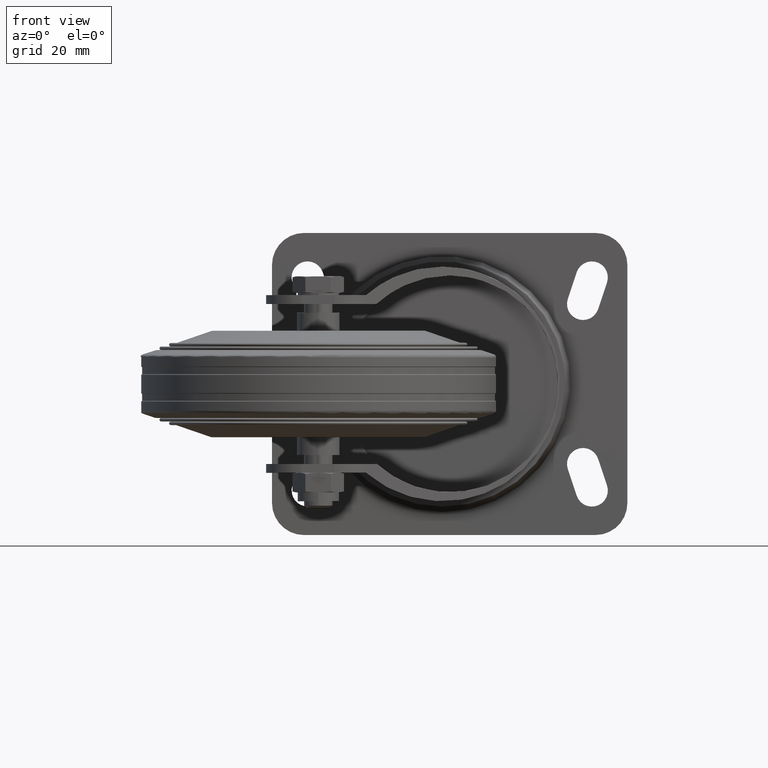
[diagram: clean part render]
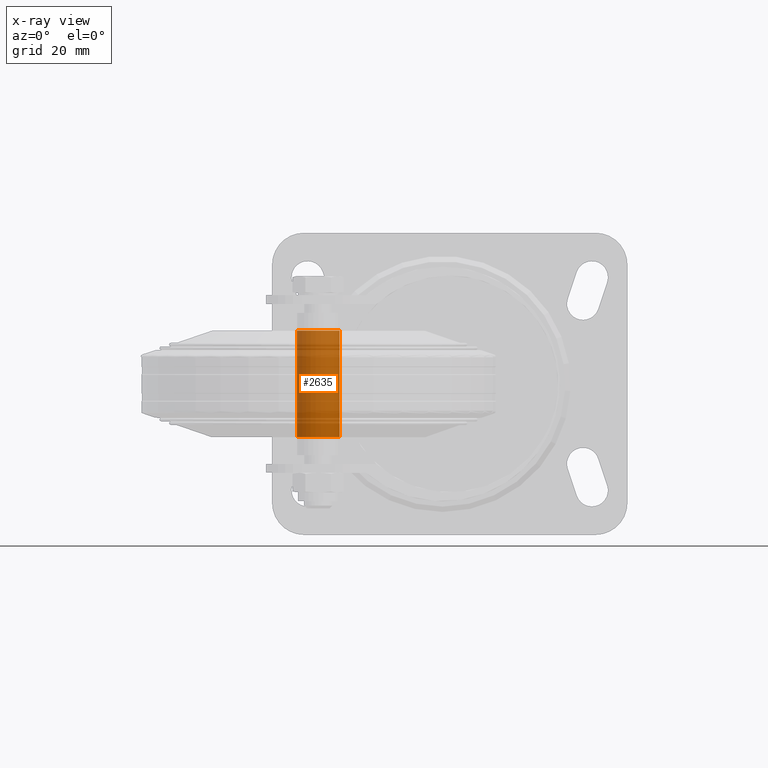
[diagram: x-ray — body ghosted, one internal face saturated and labeled with its STEP entity id]
A machine part, front view, then the same camera in x-ray: the body is ghosted and one INTERNAL B-rep face — a face not visible from any outside direction — is saturated and labeled: STEP entity #2635.
In plain terms, the highlighted cylindrical surface (bore or boss wall) has radius 6 mm, axis along (0, 0, -1).
Its self-contained STEP definition (entity closure, byte-faithful):
#344=LINE('',#4839,#471);
#471=VECTOR('',#3948,6.);
#508=CYLINDRICAL_SURFACE('',#3102,6.);
#676=FACE_OUTER_BOUND('',#882,.T.);
#882=EDGE_LOOP('',(#2427,#2428,#2429,#2430));
#1057=CIRCLE('',#3089,6.);
#1064=CIRCLE('',#3101,6.);
#1333=VERTEX_POINT('',#4817);
#1338=VERTEX_POINT('',#4836);
#1692=EDGE_CURVE('',#1333,#1333,#1057,.T.);
#1701=EDGE_CURVE('',#1338,#1338,#1064,.T.);
#1702=EDGE_CURVE('',#1338,#1333,#344,.T.);
#2427=ORIENTED_EDGE('',*,*,#1701,.F.);
#2428=ORIENTED_EDGE('',*,*,#1702,.T.);
#2429=ORIENTED_EDGE('',*,*,#1692,.T.);
#2430=ORIENTED_EDGE('',*,*,#1702,.F.);
#2635=ADVANCED_FACE('',(#676),#508,.F.);
#3089=AXIS2_PLACEMENT_3D('',#4818,#3918,#3919);
#3101=AXIS2_PLACEMENT_3D('',#4837,#3944,#3945);
#3102=AXIS2_PLACEMENT_3D('',#4838,#3946,#3947);
#3918=DIRECTION('center_axis',(6.12323399573677E-17,0.,-1.));
#3919=DIRECTION('ref_axis',(-1.,0.,-6.12323399573677E-17));
#3944=DIRECTION('center_axis',(6.12323399573677E-17,0.,-1.));
#3945=DIRECTION('ref_axis',(-1.,0.,-6.12323399573677E-17));
#3946=DIRECTION('center_axis',(6.12323399573677E-17,0.,-1.));
#3947=DIRECTION('ref_axis',(-1.,0.,-6.12323399573677E-17));
#3948=DIRECTION('',(6.12323399573677E-17,0.,-1.));
#4817=CARTESIAN_POINT('',(6.,-7.34788079488412E-16,-15.));
#4818=CARTESIAN_POINT('Origin',(9.18485099360515E-16,0.,-15.));
#4836=CARTESIAN_POINT('',(6.,-7.34788079488412E-16,15.));
#4837=CARTESIAN_POINT('Origin',(-9.18485099360515E-16,0.,15.));
#4838=CARTESIAN_POINT('Origin',(9.18485099360515E-16,0.,-15.));
#4839=CARTESIAN_POINT('',(6.,-7.34788079488412E-16,-15.));